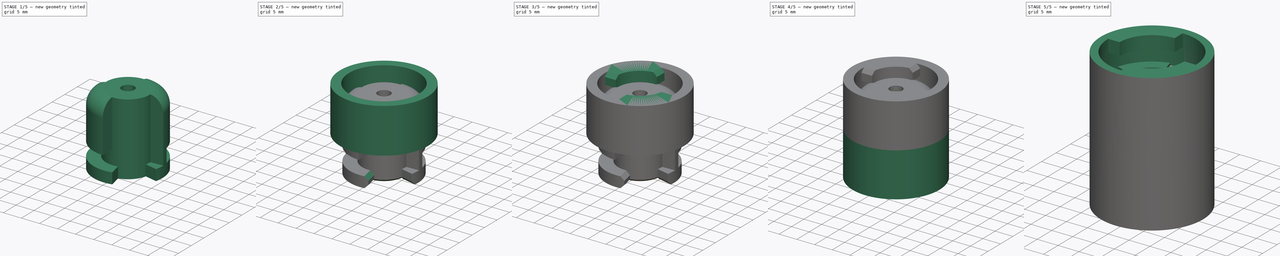
[diagram: build sequence overview — one tinted view per stage of 5, left to right]
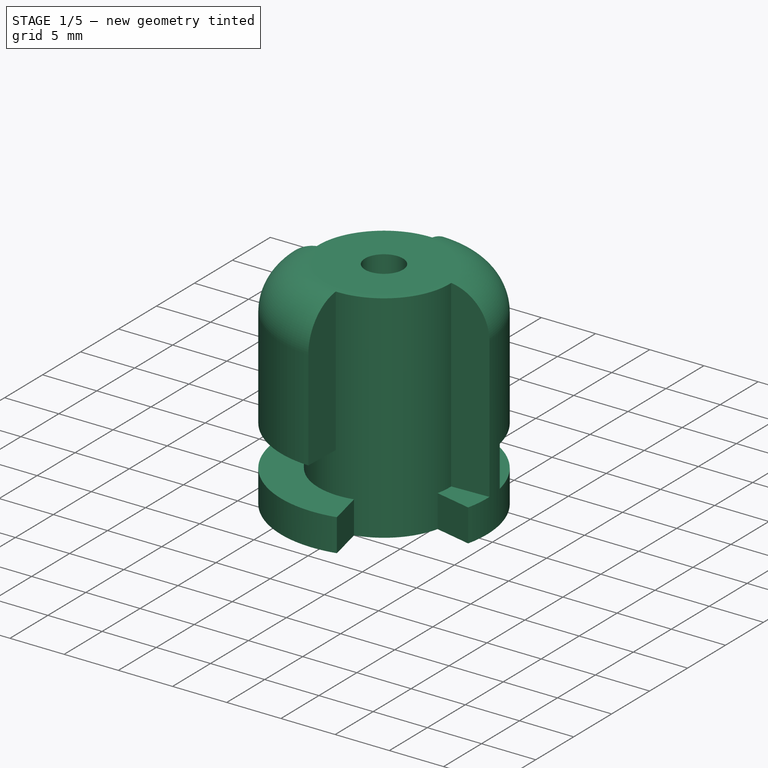
[diagram: stage 1 of 5 — iso view after this stage's code; geometry added in this stage tinted green]
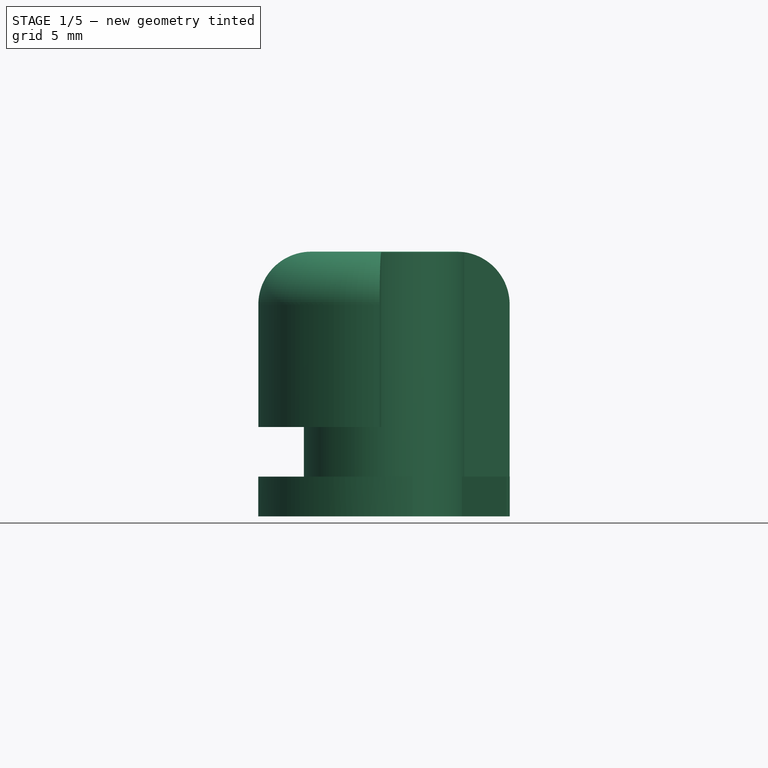
[diagram: stage 1 of 5 — front view after this stage's code; geometry added in this stage tinted green]
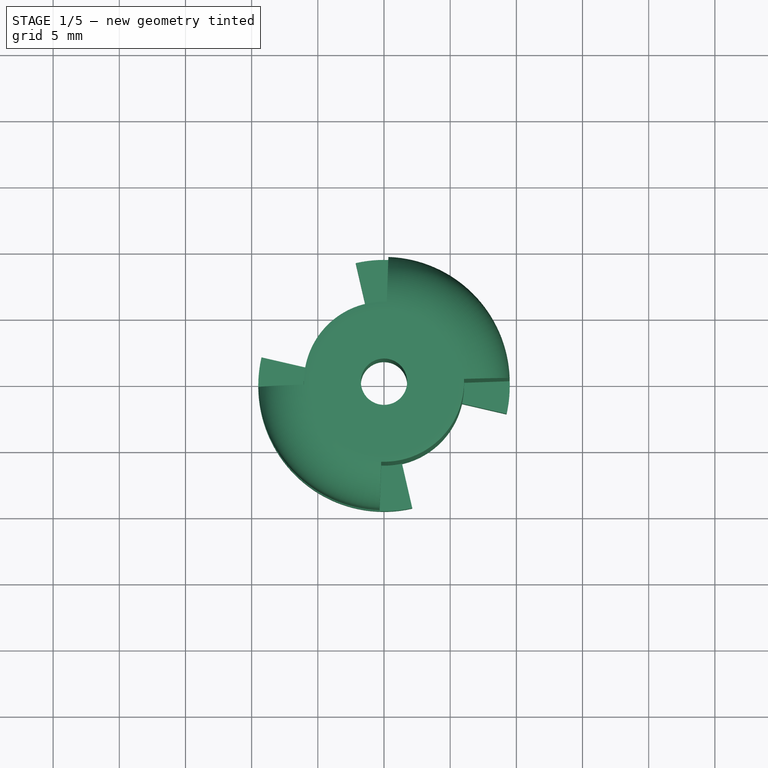
[diagram: stage 1 of 5 — top view after this stage's code; geometry added in this stage tinted green]
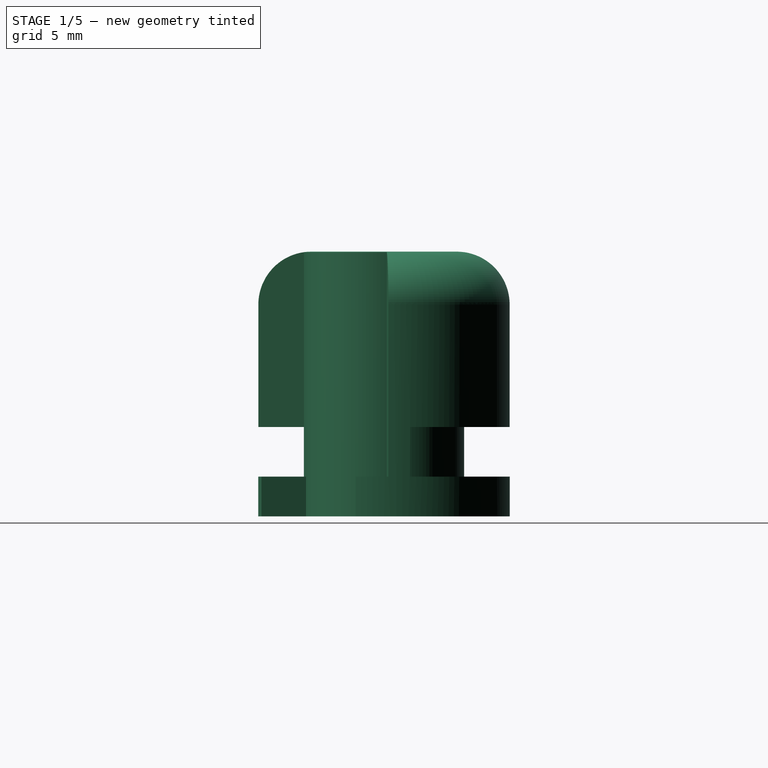
[diagram: stage 1 of 5 — right view after this stage's code; geometry added in this stage tinted green]
FCSTD DOCUMENT  (FreeCAD 0.20R)
Label: PushButtonFeet
License: All rights reserved
LicenseURL: http://en.wikipedia.org/wiki/All_rights_reserved
objects: Sketcher::SketchObject×19, PartDesign::Pad×10, PartDesign::PolarPattern×9, PartDesign::Chamfer×7, PartDesign::Plane×5, PartDesign::Pocket×5, PartDesign::Body×4, PartDesign::Revolution×3, Spreadsheet::Sheet×1
note: 87 computed .brp shape members not serialized (recipe doc carries the construction recipe); baked Part::Feature solids carry a one-line shape summary decoded from their .brp

FEATURE [Sketcher::SketchObject] Sketch013
  FullyConstrained = true
  MapMode = 5
  Placement = pos=(0,0,0) rot=(1,0,0;1.5708rad)
  Support = -> [XZ_Plane003]
  expr: Constraints[6] = <<Spreadsheet>>.Axlediameter / 2
  expr: Constraints[7] = <<Spreadsheet>>.Holediameter / 2 - <<Spreadsheet>>.Wallthickness - 0.25mm
  expr: Constraints[8] = <<Spreadsheet>>.Holedepth - 2 * <<Spreadsheet>>.Wallthickness
  expr: Constraints[22] = <<Spreadsheet>>.Groove
  expr: Constraints[23] = <<Spreadsheet>>.Groove + 0.75mm
  expr: Constraints[24] = <<Spreadsheet>>.Holediameter / 2 - <<Spreadsheet>>.Wallthickness - <<Spreadsheet>>.Blockerthickness - 0.7mm
  sketch-geometry (9):
    g0: LineSegment StartX=1.75 StartY=20 StartZ=0 EndX=5.5 EndY=20 EndZ=0
    g1: ArcOfCircle CenterX=5.5 CenterY=16 CenterZ=0 NormalX=0 NormalY=0 NormalZ=1 AngleXU=0 Radius=4 StartAngle=0 EndAngle=1.5708
    g2: LineSegment StartX=9.5 StartY=0 StartZ=0 EndX=1.75 EndY=0 EndZ=0
    g3: LineSegment StartX=1.75 StartY=0 StartZ=0 EndX=1.75 EndY=20 EndZ=0
    g4: LineSegment StartX=9.5 StartY=0 StartZ=0 EndX=9.5 EndY=3 EndZ=0
    g5: LineSegment StartX=9.5 StartY=3 StartZ=0 EndX=6.05 EndY=3 EndZ=0
    g6: LineSegment StartX=6.05 StartY=3 StartZ=0 EndX=6.05 EndY=6.75 EndZ=0
    g7: LineSegment StartX=6.05 StartY=6.75 StartZ=0 EndX=9.5 EndY=6.75 EndZ=0
    g8: LineSegment StartX=9.5 StartY=6.75 StartZ=0 EndX=9.5 EndY=16 EndZ=0
  constraints (27):
    c: Horizontal(g0)
    c: Tangent(g1,g0) = 1.5708
    c: Horizontal(g2)
    c: Vertical(g3)
    c: Coincident(g0,g3)
    c: Coincident(g2,g3)
    c: DistanceX(g-1,g0) = 1.75
    c: DistanceX(g-1,g2) = 9.5
    c: DistanceY(g3,g3) = 20
    c: DistanceY(g-1,g2) = 0
    c: Radius(g1) = 4
    c: Coincident(g2,g4)
    c: Vertical(g4)
    c: Coincident(g4,g5)
    c: Horizontal(g5)
    c: Coincident(g5,g6)
    c: Vertical(g6)
    c: Coincident(g6,g7)
    c: Horizontal(g7)
    c: Coincident(g7,g8)
    c: Coincident(g8,g1)
    c: Vertical(g8)
    c: DistanceY(g4,g4) = 3
    c: DistanceY(g6,g6) = 3.75
    c: DistanceX(g-1,g5) = 6.05
    c: Vertical(g7,g4)
    c: Horizontal(g1,g1)
FEATURE [PartDesign::Revolution] Revolution002
  Angle = 360
  Axis = (0,-2e-16,1)
  Base = (0,0,0)
  Placement = pos=(0,0,0) rot=(1,0,0;1.5708rad)
  Profile = -> Sketch013
  ReferenceAxis = -> Sketch013 [V_Axis]
  Refine = true
  Reversed = true
FEATURE [Sketcher::SketchObject] Sketch014
  FullyConstrained = true
  MapMode = 5
  Support = -> [XY_Plane003]
  expr: Constraints[16] = <<Spreadsheet>>.Holediameter
  expr: Constraints[17] = <<Spreadsheet>>.Holediameter - 2 * <<Spreadsheet>>.Wallthickness - 0.5mm
  expr: Constraints[28] = <<Spreadsheet>>.Guideangle + 4°
  expr: Constraints[35] = <<Spreadsheet>>.Holediameter / 2 - <<Spreadsheet>>.Wallthickness - <<Spreadsheet>>.Blockerthickness - 0.7mm
  sketch-geometry (13):
    g0: ArcOfCircle CenterX=0 CenterY=0 CenterZ=0 NormalX=0 NormalY=0 NormalZ=1 AngleXU=0 Radius=6.05 StartAngle=1.79769 EndAngle=2.9147
    g1: ArcOfCircle CenterX=0 CenterY=0 CenterZ=0 NormalX=0 NormalY=0 NormalZ=1 AngleXU=0 Radius=12.25 StartAngle=0.785398 EndAngle=3.92699
    g2: ArcOfCircle CenterX=0 CenterY=0 CenterZ=0 NormalX=0 NormalY=0 NormalZ=1 AngleXU=0 Radius=9.5 StartAngle=0.785398 EndAngle=1.79769
    g3: ArcOfCircle CenterX=0 CenterY=0 CenterZ=0 NormalX=0 NormalY=0 NormalZ=1 AngleXU=0 Radius=9.5 StartAngle=2.9147 EndAngle=3.92699
    g4: LineSegment StartX=-8.66206 StartY=-8.66206 StartZ=0 EndX=-6.71751 EndY=-6.71751 EndZ=0
    g5: LineSegment StartX=6.71751 StartY=6.71751 StartZ=0 EndX=8.66206 EndY=8.66206 EndZ=0
    g6: LineSegment StartX=-2.13704 StartY=9.25652 StartZ=0 EndX=-1.36095 EndY=5.89494 EndZ=0
    g7: LineSegment StartX=-9.25652 StartY=2.13704 StartZ=0 EndX=-5.89494 EndY=1.36095 EndZ=0
    g8: LineSegment StartX=-8.66206 StartY=-8.66206 StartZ=0 EndX=8.66206 EndY=8.66206 EndZ=0
    g9: LineSegment StartX=0 StartY=0 StartZ=0 EndX=-9.25652 EndY=2.13704 EndZ=0
    g10: LineSegment StartX=0 StartY=0 StartZ=0 EndX=-2.13704 EndY=9.25652 EndZ=0
    g11: LineSegment StartX=-1.36095 StartY=5.89494 StartZ=0 EndX=6.71751 EndY=6.71751 EndZ=0
    g12: LineSegment StartX=-5.89494 StartY=1.36095 StartZ=0 EndX=-6.71751 EndY=-6.71751 EndZ=0
  constraints (36):
    c: Coincident(g4,g1)
    c: Coincident(g4,g3)
    c: Coincident(g5,g2)
    c: Coincident(g5,g1)
    c: Coincident(g6,g2)
    c: Coincident(g6,g0)
    c: Coincident(g7,g3)
    c: Coincident(g7,g0)
    c: Coincident(g8,g1)
    c: Coincident(g8,g1)
    c: Parallel(g5,g8)
    c: Parallel(g4,g8)
    c: PointOnObject(g0,g8)
    c: Coincident(g0,g1)
    c: PointOnObject(g0,g-2)
    c: PointOnObject(g0,g-1)
    c: Diameter(g1) = 24.5
    c: Diameter(g2) = 19
    c: Equal(g3,g2)
    c: Coincident(g3,g2)
    c: PointOnObject(g2,g-2)
    c: PointOnObject(g2,g-1)
    c: Coincident(g9,g0)
    c: Coincident(g9,g3)
    c: Coincident(g10,g0)
    c: Coincident(g10,g2)
    c: Parallel(g6,g10)
    c: Parallel(g7,g9)
    c: Angle(g10,g9) = 1.11701
    c: Coincident(g11,g0)
    c: Coincident(g11,g2)
    c: Coincident(g12,g0)
    c: Coincident(g12,g3)
    c: Equal(g12,g11)
    c: Angle(g8,g-1) = 2.35619
    c: Radius(g0) = 6.05
FEATURE [PartDesign::Pocket] Pocket001
  BaseFeature = -> Revolution002
  Length = 5
  Length2 = 100
  Placement = pos=(0,0,0) rot=(1,0,0;1.5708rad)
  Profile = -> Sketch014
  Refine = true
  Reversed = true
  Type = 1
FEATURE [PartDesign::PolarPattern] PolarPattern006
  Angle = 360
  Axis = -> Sketch014 [N_Axis]
  BaseFeature = -> Pocket001
  Occurrences = 2
  Originals = -> [Pocket001]
  Overlap = 0
  Placement = pos=(0,0,0) rot=(1,0,0;1.5708rad)
  Refine = true
FEATURE [PartDesign::Plane] DatumPlane004
  Length = 60
  MapMode = 5
  Placement = pos=(0,-7e-16,3) rot=(0,0,1;3.14159rad)
  ResizeMode = 0
  Support = -> [PolarPattern006]
  Width = 60
FEATURE [Sketcher::SketchObject] Sketch015
  FullyConstrained = true
  MapMode = 5
  Placement = pos=(0,-7e-16,3) rot=(0,0,1;3.14159rad)
  Support = -> [DatumPlane004]
  expr: Constraints[16] = Sketch014.Constraints[16]
  expr: Constraints[17] = Sketch014.Constraints[17]
  expr: Constraints[28] = 94°
  expr: Constraints[34] = Sketch014.Constraints[34]
  expr: Constraints[35] = Sketch014.Constraints[35]
  sketch-geometry (13):
    g0: ArcOfCircle CenterX=0 CenterY=0 CenterZ=0 NormalX=0 NormalY=0 NormalZ=1 AngleXU=0 Radius=6.05 StartAngle=1.53589 EndAngle=3.1765
    g1: ArcOfCircle CenterX=0 CenterY=0 CenterZ=0 NormalX=0 NormalY=0 NormalZ=1 AngleXU=0 Radius=12.25 StartAngle=0.785398 EndAngle=3.92699
    g2: ArcOfCircle CenterX=0 CenterY=0 CenterZ=0 NormalX=0 NormalY=0 NormalZ=1 AngleXU=0 Radius=9.5 StartAngle=0.785398 EndAngle=1.53589
    g3: ArcOfCircle CenterX=0 CenterY=0 CenterZ=0 NormalX=0 NormalY=0 NormalZ=1 AngleXU=0 Radius=9.5 StartAngle=3.1765 EndAngle=3.92699
    g4: LineSegment StartX=-8.66206 StartY=-8.66206 StartZ=0 EndX=-6.71751 EndY=-6.71751 EndZ=0
    g5: LineSegment StartX=6.71751 StartY=6.71751 StartZ=0 EndX=8.66206 EndY=8.66206 EndZ=0
    g6: LineSegment StartX=0.331545 StartY=9.49421 StartZ=0 EndX=0.211142 EndY=6.04631 EndZ=0
    g7: LineSegment StartX=-9.49421 StartY=-0.331545 StartZ=0 EndX=-6.04631 EndY=-0.211142 EndZ=0
    g8: LineSegment StartX=-8.66206 StartY=-8.66206 StartZ=0 EndX=8.66206 EndY=8.66206 EndZ=0
    g9: LineSegment StartX=0 StartY=0 StartZ=0 EndX=-9.49421 EndY=-0.331545 EndZ=0
    g10: LineSegment StartX=0 StartY=0 StartZ=0 EndX=0.331545 EndY=9.49421 EndZ=0
    g11: LineSegment StartX=0.211142 StartY=6.04631 StartZ=0 EndX=6.71751 EndY=6.71751 EndZ=0
    g12: LineSegment StartX=-6.04631 StartY=-0.211142 StartZ=0 EndX=-6.71751 EndY=-6.71751 EndZ=0
  constraints (36):
    c: Coincident(g4,g1)
    c: Coincident(g4,g3)
    c: Coincident(g5,g2)
    c: Coincident(g5,g1)
    c: Coincident(g6,g2)
    c: Coincident(g6,g0)
    c: Coincident(g7,g3)
    c: Coincident(g7,g0)
    c: Coincident(g8,g1)
    c: Coincident(g8,g1)
    c: Parallel(g5,g8)
    c: Parallel(g4,g8)
    c: PointOnObject(g0,g8)
    c: Coincident(g0,g1)
    c: PointOnObject(g0,g-2)
    c: PointOnObject(g0,g-1)
    c: Diameter(g1) = 24.5
    c: Diameter(g2) = 19
    c: Equal(g3,g2)
    c: Coincident(g3,g2)
    c: PointOnObject(g2,g-2)
    c: PointOnObject(g2,g-1)
    c: Coincident(g9,g0)
    c: Coincident(g9,g3)
    c: Coincident(g10,g0)
    c: Coincident(g10,g2)
    c: Parallel(g6,g10)
    c: Parallel(g7,g9)
    c: Angle(g10,g9) = 1.64061
    c: Coincident(g11,g0)
    c: Coincident(g11,g2)
    c: Coincident(g12,g0)
    c: Coincident(g12,g3)
    c: Equal(g12,g11)
    c: Angle(g8,g-1) = 2.35619
    c: Radius(g0) = 6.05
FEATURE [PartDesign::Pocket] Pocket002
  BaseFeature = -> PolarPattern006
  Length = 5
  Length2 = 100
  Placement = pos=(0,0,0) rot=(1,0,0;1.5708rad)
  Profile = -> Sketch015
  Refine = true
  Reversed = true
  Type = 1
FEATURE [PartDesign::PolarPattern] PolarPattern007
  Angle = 360
  Axis = -> Sketch015 [N_Axis]
  BaseFeature = -> Pocket002
  Occurrences = 2
  Originals = -> [Pocket002]
  Overlap = 0
  Placement = pos=(0,0,0) rot=(1,0,0;1.5708rad)
  Refine = true
FEATURE [Sketcher::SketchObject] Sketch017
  FullyConstrained = true
  MapMode = 5
  Support = -> [XY_Plane003]
  sketch-geometry (1):
    g0: Circle CenterX=0 CenterY=0 CenterZ=0 NormalX=0 NormalY=0 NormalZ=1 AngleXU=0 Radius=4
  constraints (2):
    c: Coincident(g0,g-1)
    c: Diameter(g0) = 8
FEATURE [PartDesign::Pocket] Pocket003
  BaseFeature = -> PolarPattern007
  Length = 4
  Length2 = 100
  Placement = pos=(0,0,0) rot=(1,0,0;1.5708rad)
  Profile = -> Sketch017
  Refine = true
  Reversed = true
  Type = 0
FEATURE [Sketcher::SketchObject] Sketch018
  ExternalGeometry = -> [Pocket003]
  FullyConstrained = true
  MapMode = 5
  Placement = pos=(0,-1.5e-15,6.75) rot=(1,0,0;3.14159rad)
  Support = -> [Pocket003]
  sketch-geometry (5):
    g0: LineSegment StartX=9.2924 StartY=-1.97516 StartZ=0 EndX=0 EndY=0 EndZ=0
    g1: ArcOfCircle CenterX=0 CenterY=0 CenterZ=0 NormalX=0 NormalY=0 NormalZ=1 AngleXU=0 Radius=6.05 StartAngle=6.07375 EndAngle=6.24828
    g2: LineSegment StartX=6.04631 StartY=-0.211142 StartZ=0 EndX=9.49421 EndY=-0.331545 EndZ=0
    g3: LineSegment StartX=5.91779 StartY=-1.25787 StartZ=0 EndX=9.2924 EndY=-1.97516 EndZ=0
    g4: ArcOfCircle CenterX=0 CenterY=0 CenterZ=0 NormalX=0 NormalY=0 NormalZ=1 AngleXU=0 Radius=9.5 StartAngle=6.07375 EndAngle=6.24828
  constraints (12):
    c: Angle(g0,g-1) = 0.20944
    c: Coincident(g1,g-1)
    c: Coincident(g1,g-4)
    c: PointOnObject(g1,g0)
    c: Coincident(g2,g1)
    c: Coincident(g2,g-4)
    c: Coincident(g3,g1)
    c: Coincident(g3,g0)
    c: Coincident(g4,g1)
    c: Coincident(g4,g2)
    c: Coincident(g4,g3)
    c: Coincident(g0,g1)
FEATURE [PartDesign::Pad] Pad009
  BaseFeature = -> Pocket003
  Direction = (0,2e-16,-1)
  Length = 10
  Length2 = 100
  Placement = pos=(0,0,0) rot=(1,0,0;1.5708rad)
  Profile = -> Sketch018
  ReferenceAxis = -> Sketch018 [N_Axis]
  Refine = true
  Type = 2
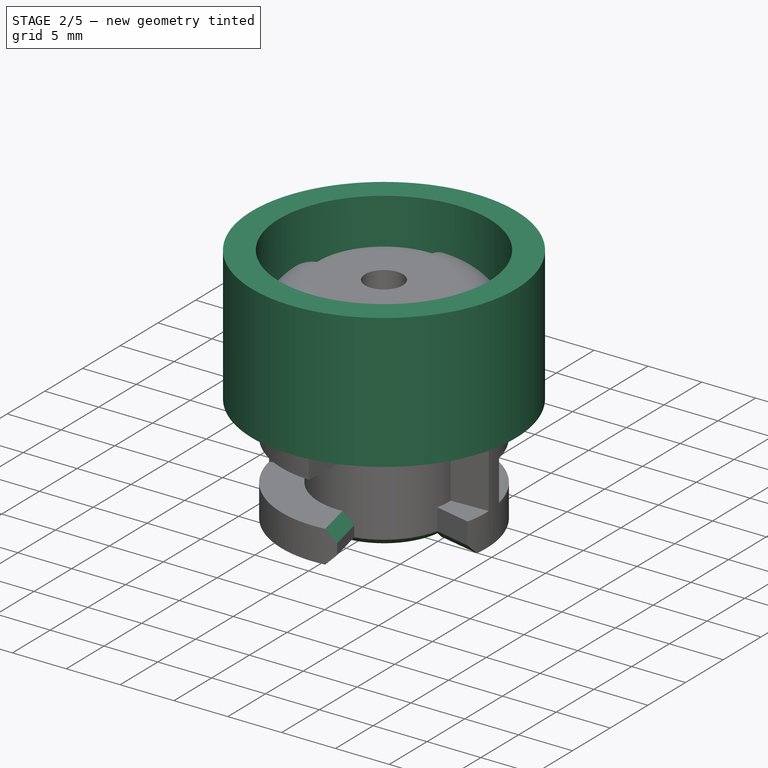
[diagram: stage 2 of 5 — iso view after this stage's code; geometry added in this stage tinted green]
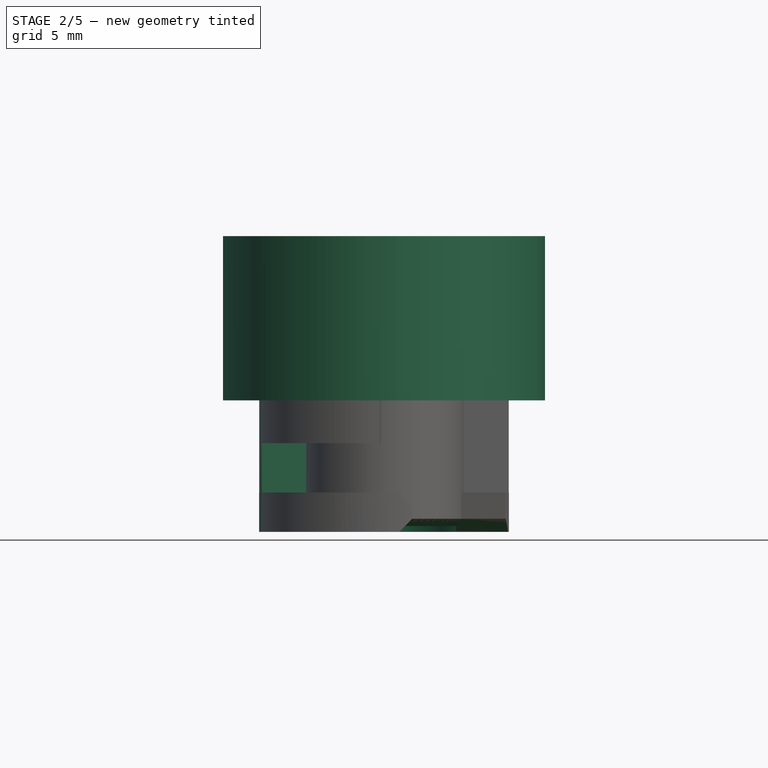
[diagram: stage 2 of 5 — front view after this stage's code; geometry added in this stage tinted green]
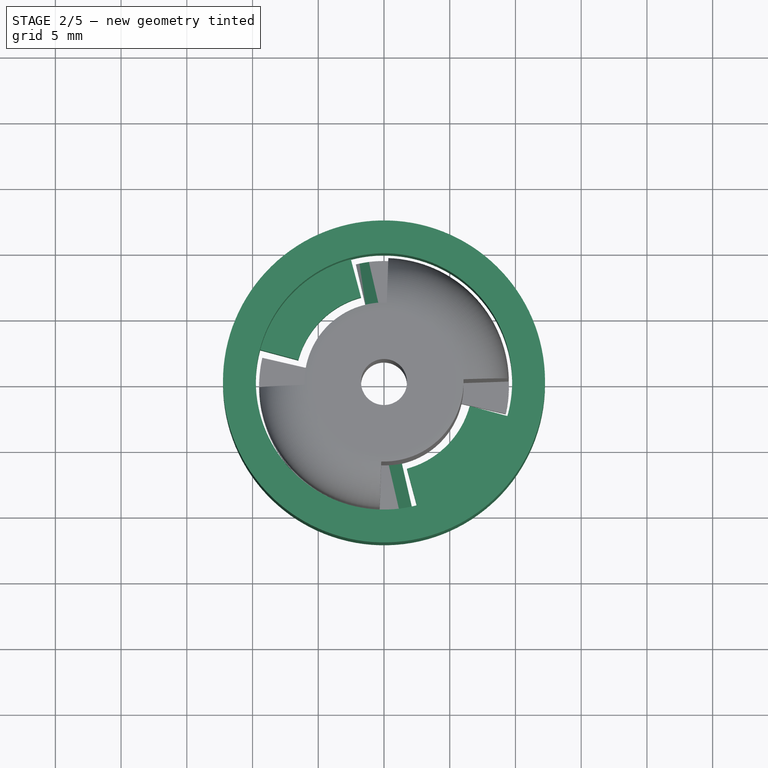
[diagram: stage 2 of 5 — top view after this stage's code; geometry added in this stage tinted green]
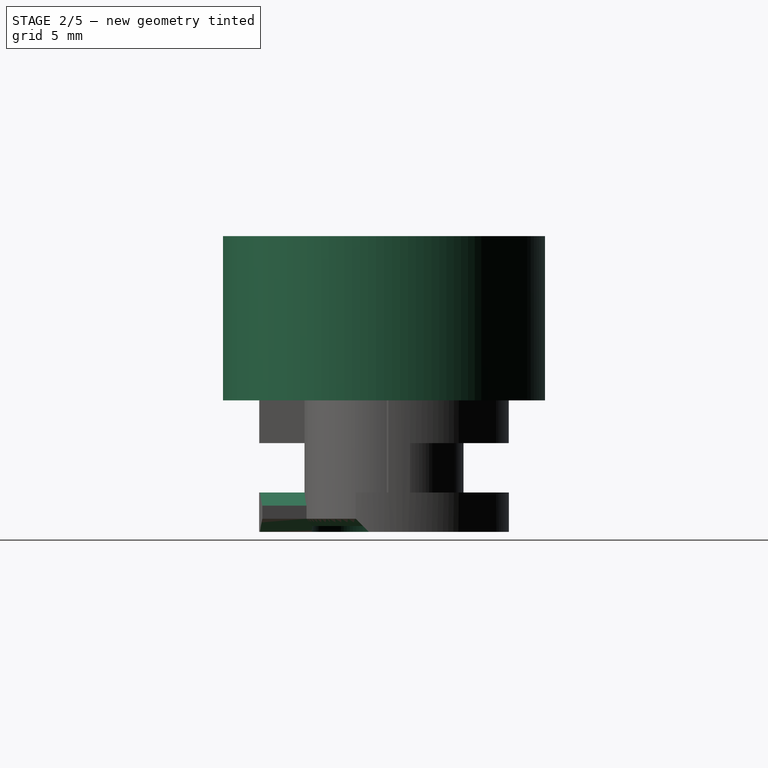
[diagram: stage 2 of 5 — right view after this stage's code; geometry added in this stage tinted green]
FEATURE [PartDesign::Body] Body001  label="LowerHalf"
  Group = -> [Sketch005,Pad004,Chamfer001,Sketch006,Revolution,Sketch007,Pad005,PolarPattern001,DatumPlane001,Sketch008,Pad006,PolarPattern002,Chamfer002]
  Origin = -> Origin001
  Tip = -> Chamfer002
FEATURE [Sketcher::SketchObject] Sketch009
  FullyConstrained = true
  MapMode = 5
  Placement = pos=(0,0,0) rot=(1,0,0;1.5708rad)
  Support = -> [XZ_Plane002]
  expr: Constraints[11] = <<Spreadsheet>>.Holediameter / 2
  expr: Constraints[12] = <<Spreadsheet>>.Wallthickness
  expr: Constraints[14] = <<Spreadsheet>>.Wallthickness / 2
  expr: Constraints[17] = <<Spreadsheet>>.Holedepth - <<Spreadsheet>>.Wallthickness
  expr: Constraints[15] = <<Spreadsheet>>.Holedepth / 2
  expr: Constraints[16] = <<Spreadsheet>>.Wallthickness
  sketch-geometry (6):
    g0: LineSegment StartX=12.25 StartY=10 StartZ=0 EndX=12.25 EndY=22.5 EndZ=0
    g1: LineSegment StartX=12.25 StartY=22.5 StartZ=0 EndX=9.75 EndY=22.5 EndZ=0
    g2: LineSegment StartX=9.75 StartY=22.5 StartZ=0 EndX=9.75 EndY=12.5 EndZ=0
    g3: LineSegment StartX=9.75 StartY=12.5 StartZ=0 EndX=11 EndY=12.5 EndZ=0
    g4: LineSegment StartX=11 StartY=12.5 StartZ=0 EndX=11 EndY=10 EndZ=0
    g5: LineSegment StartX=11 StartY=10 StartZ=0 EndX=12.25 EndY=10 EndZ=0
  constraints (18):
    c: Vertical(g0)
    c: Coincident(g0,g1)
    c: Coincident(g1,g2)
    c: Coincident(g2,g3)
    c: Horizontal(g3)
    c: Coincident(g3,g4)
    c: Coincident(g4,g5)
    c: Coincident(g5,g0)
    c: Vertical(g2)
    c: Vertical(g4)
    c: Horizontal(g5)
    c: DistanceX(g-1,g0) = 12.25
    c: DistanceX(g1,g1) = 2.5
    c: Horizontal(g1)
    c: DistanceX(g5,g5) = 1.25
    c: DistanceY(g-1,g2) = 12.5
    c: DistanceY(g4,g4) = 2.5
    c: DistanceY(g-1,g0) = 22.5
FEATURE [PartDesign::Revolution] Revolution001
  Angle = 360
  Axis = (0,-2e-16,1)
  Base = (0,0,0)
  Placement = pos=(0,0,0) rot=(1,0,0;1.5708rad)
  Profile = -> Sketch009
  ReferenceAxis = -> Sketch009 [V_Axis]
  Refine = true
  Reversed = true
FEATURE [PartDesign::Plane] DatumPlane002
  AttachmentOffset = pos=(0,0,-12.5) rot=(0,0,1;0rad)
  Length = 60
  MapMode = 3
  Placement = pos=(0,-2.8e-15,12.5) rot=(1,0,0;3.14159rad)
  ResizeMode = 0
  Support = -> [Revolution001]
  Width = 60
  expr: .AttachmentOffset.Base.z = -<<Spreadsheet>>.Holedepth / 2
FEATURE [Sketcher::SketchObject] Sketch010
  FullyConstrained = true
  MapMode = 5
  Placement = pos=(0,-2.8e-15,12.5) rot=(1,0,0;3.14159rad)
  Support = -> [DatumPlane002]
  expr: Constraints[12] = <<Spreadsheet>>.Holediameter - 2 * <<Spreadsheet>>.Wallthickness
  expr: Constraints[13] = <<Spreadsheet>>.Blockerthickness
  expr: Constraints[14] = (90° - <<Spreadsheet>>.Guideangle) / 2
  expr: Constraints[15] = <<Spreadsheet>>.Guideangle
  sketch-geometry (6):
    g0: ArcOfCircle CenterX=0 CenterY=0 CenterZ=0 NormalX=0 NormalY=0 NormalZ=1 AngleXU=0 Radius=6.75 StartAngle=0.261799 EndAngle=1.309
    g1: ArcOfCircle CenterX=0 CenterY=0 CenterZ=0 NormalX=0 NormalY=0 NormalZ=1 AngleXU=0 Radius=9.75 StartAngle=0.261799 EndAngle=1.309
    g2: LineSegment StartX=2.52349 StartY=9.41778 StartZ=0 EndX=1.74703 EndY=6.52 EndZ=0
    g3: LineSegment StartX=6.52 StartY=1.74703 StartZ=0 EndX=9.41778 EndY=2.52349 EndZ=0
    g4: LineSegment StartX=0 StartY=0 StartZ=0 EndX=9.41778 EndY=2.52349 EndZ=0
    g5: LineSegment StartX=0 StartY=0 StartZ=0 EndX=2.52349 EndY=9.41778 EndZ=0
  constraints (16):
    c: Coincident(g0,g-1)
    c: Coincident(g1,g0)
    c: Coincident(g2,g1)
    c: Coincident(g2,g0)
    c: Coincident(g3,g0)
    c: Coincident(g3,g1)
    c: Coincident(g4,g0)
    c: Coincident(g4,g1)
    c: Coincident(g5,g0)
    c: Coincident(g5,g1)
    c: Parallel(g2,g5)
    c: Parallel(g3,g4)
    c: Diameter(g1) = 19.5
    c: Distance(g2) = 3
    c: Angle(g5,g-2) = 0.261799
    c: Angle(g4,g5) = 1.0472
FEATURE [PartDesign::Pad] Pad007
  BaseFeature = -> Revolution001
  Direction = (0,2e-16,-1)
  Length = 3.25
  Length2 = 100
  Placement = pos=(0,0,0) rot=(1,0,0;1.5708rad)
  Profile = -> Sketch010
  Refine = true
  Reversed = true
  Type = 0
  expr: Length = <<Spreadsheet>>.Holedepth / 2 - <<Spreadsheet>>.Wallthickness - 2 * <<Spreadsheet>>.Groove - 0.75mm
FEATURE [PartDesign::PolarPattern] PolarPattern003
  Angle = 360
  Axis = -> Sketch010 [N_Axis]
  BaseFeature = -> Pad007
  Occurrences = 2
  Originals = -> [Pad007]
  Overlap = 0
  Placement = pos=(0,0,0) rot=(1,0,0;1.5708rad)
  Refine = true
FEATURE [PartDesign::PolarPattern] PolarPattern008
  Angle = 360
  Axis = -> Sketch018 [N_Axis]
  BaseFeature = -> Pad009
  Occurrences = 2
  Originals = -> [Pad009]
  Overlap = 0
  Placement = pos=(0,0,0) rot=(1,0,0;1.5708rad)
  Refine = true
FEATURE [PartDesign::Chamfer] Chamfer003
  Angle = 45
  Base = -> PolarPattern008 [Edge70,Edge35]
  BaseFeature = -> PolarPattern008
  ChamferType = 0
  FlipDirection = false
  Placement = pos=(0,0,0) rot=(1,0,0;1.5708rad)
  Refine = true
  Size = 1
  Size2 = 1
  SupportTransform = false
FEATURE [PartDesign::Body] Body002  label="UpperHalf"
  Group = -> [Sketch009,Revolution001,DatumPlane002,Sketch010,Pad007,PolarPattern003,Sketch011,Pocket,PolarPattern004,DatumPlane003,Sketch012,Pad008,PolarPattern005,Chamfer004,Chamfer006]
  Origin = -> Origin002
  Tip = -> Chamfer006
FEATURE [PartDesign::Chamfer] Chamfer007
  Angle = 45
  Base = -> Chamfer003 [Edge22,Edge6,Edge30,Edge29,Edge31,Edge33]
  BaseFeature = -> Chamfer003
  ChamferType = 0
  FlipDirection = false
  Placement = pos=(0,0,0) rot=(1,0,0;1.5708rad)
  Refine = true
  Size = 1
  Size2 = 1
  SupportTransform = false
FEATURE [Sketcher::SketchObject] Sketch019
  FullyConstrained = true
  MapMode = 5
  Support = -> [XY_Plane003]
  sketch-geometry (1):
    g0: Circle CenterX=0 CenterY=0 CenterZ=0 NormalX=0 NormalY=0 NormalZ=1 AngleXU=0 Radius=5.5
  constraints (2):
    c: Coincident(g0,g-1)
    c: Diameter(g0) = 11
FEATURE [PartDesign::Pocket] Pocket004
  BaseFeature = -> Chamfer007
  Length = 3
  Length2 = 100
  Placement = pos=(0,0,0) rot=(1,0,0;1.5708rad)
  Profile = -> Sketch019
  Refine = true
  Reversed = true
  Type = 0
FEATURE [PartDesign::Body] Body003  label="Foot"
  Group = -> [Sketch013,Revolution002,Sketch014,Pocket001,PolarPattern006,Sketch015,DatumPlane004,Pocket002,PolarPattern007,Sketch017,Pocket003,Sketch018,Pad009,PolarPattern008,Chamfer003,Chamfer007,Sketch019,Pocket004]
  Origin = -> Origin003
  Tip = -> Pocket004
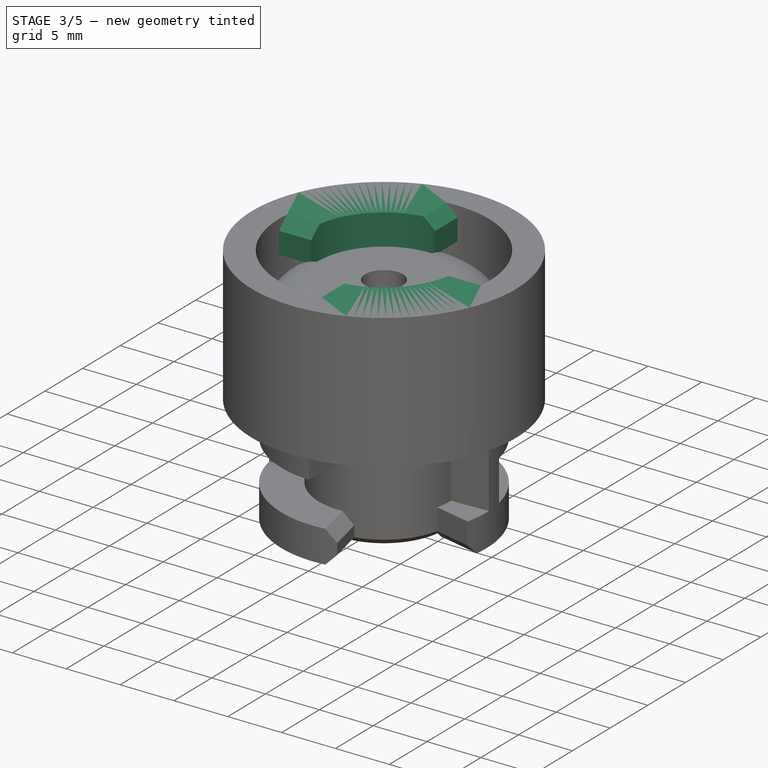
[diagram: stage 3 of 5 — iso view after this stage's code; geometry added in this stage tinted green]
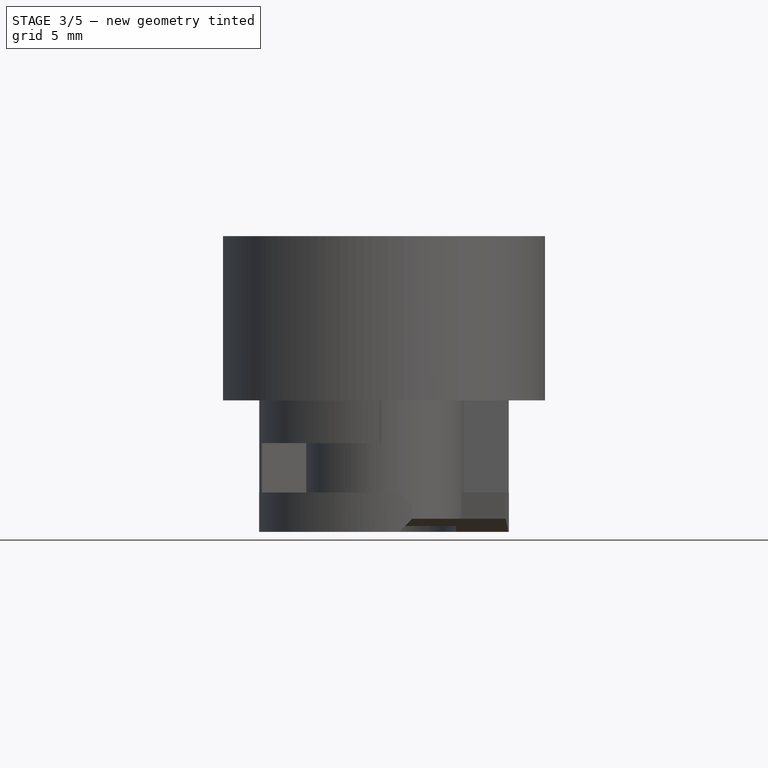
[diagram: stage 3 of 5 — front view after this stage's code; geometry added in this stage tinted green]
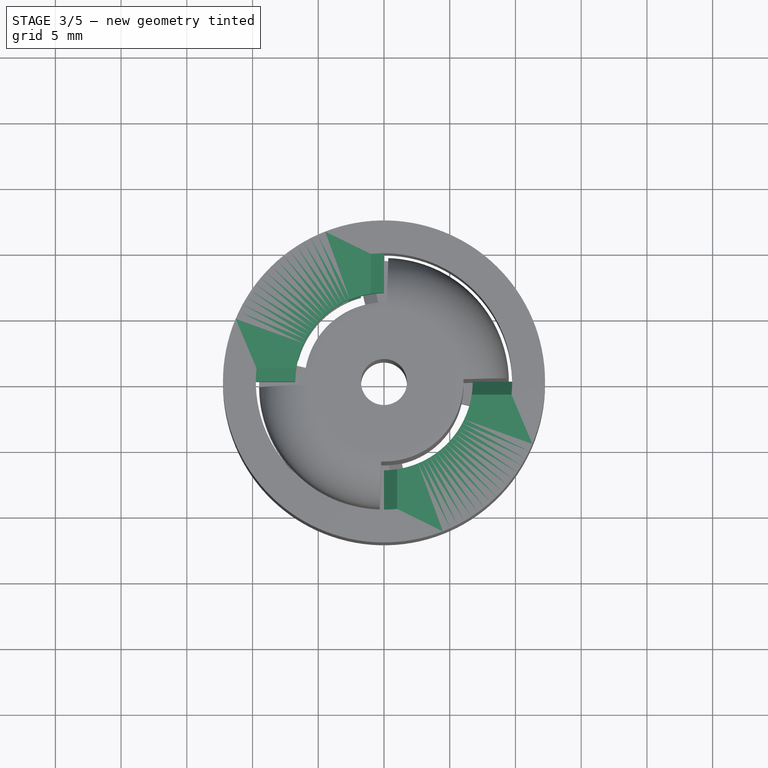
[diagram: stage 3 of 5 — top view after this stage's code; geometry added in this stage tinted green]
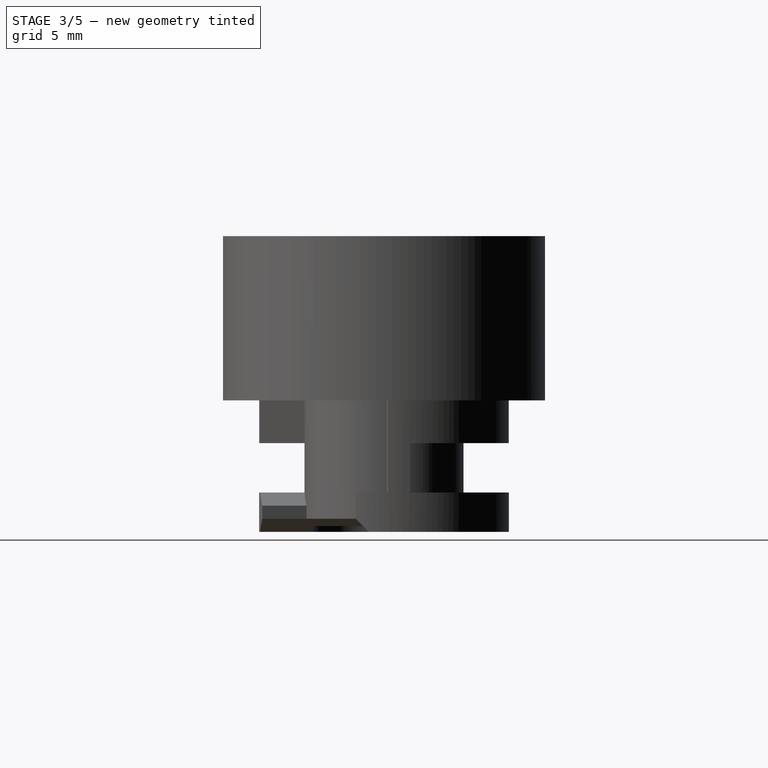
[diagram: stage 3 of 5 — right view after this stage's code; geometry added in this stage tinted green]
FEATURE [Sketcher::SketchObject] Sketch011
  FullyConstrained = true
  MapMode = 5
  Placement = pos=(0,-2.8e-15,12.5) rot=(1,0,0;3.14159rad)
  Support = -> [DatumPlane002]
  expr: Constraints[2] = <<Spreadsheet>>.Blockerthickness / 2 + 1mm
  expr: Constraints[4] = <<Spreadsheet>>.Holediameter / 2 - <<Spreadsheet>>.Wallthickness - <<Spreadsheet>>.Blockerthickness / 2
  sketch-geometry (2):
    g0: LineSegment StartX=0 StartY=0 StartZ=0 EndX=5.83363 EndY=5.83363 EndZ=0
    g1: Circle CenterX=5.83363 CenterY=5.83363 CenterZ=0 NormalX=0 NormalY=0 NormalZ=1 AngleXU=0 Radius=1.25
  constraints (5):
    c: Coincident(g0,g-1)
    c: Coincident(g1,g0)
    c: Diameter(g1) = 2.5
    c: Angle(g-1,g0) = 0.785398
    c: Distance(g0) = 8.25
FEATURE [PartDesign::Pocket] Pocket
  BaseFeature = -> PolarPattern003
  Length = 2
  Length2 = 100
  Placement = pos=(0,0,0) rot=(1,0,0;1.5708rad)
  Profile = -> Sketch011
  Refine = true
  Type = 0
FEATURE [PartDesign::PolarPattern] PolarPattern004
  Angle = 360
  Axis = -> Sketch011 [N_Axis]
  BaseFeature = -> Pocket
  Occurrences = 2
  Originals = -> [Pocket]
  Overlap = 0
  Placement = pos=(0,0,0) rot=(1,0,0;1.5708rad)
  Refine = true
FEATURE [PartDesign::Plane] DatumPlane003
  AttachmentOffset = pos=(0,0,-22.5) rot=(0,0,1;0rad)
  Length = 60
  MapMode = 3
  Placement = pos=(0,-5e-15,22.5) rot=(1,0,0;3.14159rad)
  ResizeMode = 0
  Support = -> [PolarPattern004]
  Width = 60
  expr: .AttachmentOffset.Base.z = -<<Spreadsheet>>.Holedepth + <<Spreadsheet>>.Wallthickness
FEATURE [Sketcher::SketchObject] Sketch012
  FullyConstrained = true
  MapMode = 5
  Placement = pos=(0,-5e-15,22.5) rot=(1,0,0;3.14159rad)
  Support = -> [DatumPlane003]
  expr: Constraints[10] = <<Spreadsheet>>.Blockerthickness
  expr: Constraints[11] = <<Spreadsheet>>.Holediameter - 2 * <<Spreadsheet>>.Wallthickness
  sketch-geometry (4):
    g0: ArcOfCircle CenterX=0 CenterY=0 CenterZ=0 NormalX=0 NormalY=0 NormalZ=1 AngleXU=0 Radius=9.75 StartAngle=0 EndAngle=1.5708
    g1: ArcOfCircle CenterX=0 CenterY=0 CenterZ=0 NormalX=0 NormalY=0 NormalZ=1 AngleXU=0 Radius=6.75 StartAngle=1e-16 EndAngle=1.5708
    g2: LineSegment StartX=6e-16 StartY=9.75 StartZ=0 EndX=4e-16 EndY=6.75 EndZ=0
    g3: LineSegment StartX=6.75 StartY=7e-16 StartZ=0 EndX=9.75 EndY=0 EndZ=0
  constraints (12):
    c: Coincident(g0,g-1)
    c: PointOnObject(g0,g-2)
    c: PointOnObject(g0,g-1)
    c: Coincident(g1,g0)
    c: PointOnObject(g1,g-2)
    c: PointOnObject(g1,g-1)
    c: Coincident(g2,g0)
    c: Coincident(g2,g1)
    c: Coincident(g3,g1)
    c: Coincident(g3,g0)
    c: Distance(g3) = 3
    c: Diameter(g0) = 19.5
FEATURE [PartDesign::Pad] Pad008
  BaseFeature = -> PolarPattern004
  Direction = (0,2e-16,-1)
  Length = 3
  Length2 = 100
  Placement = pos=(0,0,0) rot=(1,0,0;1.5708rad)
  Profile = -> Sketch012
  Refine = true
  Type = 0
  expr: Length = <<Spreadsheet>>.Groove
FEATURE [PartDesign::PolarPattern] PolarPattern005
  Angle = 360
  Axis = -> Sketch012 [N_Axis]
  BaseFeature = -> Pad008
  Occurrences = 2
  Originals = -> [Pad008]
  Overlap = 0
  Placement = pos=(0,0,0) rot=(1,0,0;1.5708rad)
  Refine = true
FEATURE [PartDesign::Chamfer] Chamfer004
  Angle = 45
  Base = -> PolarPattern005 [Edge49,Edge34,Edge56,Edge51]
  BaseFeature = -> PolarPattern005
  ChamferType = 0
  FlipDirection = false
  Placement = pos=(0,0,0) rot=(1,0,0;1.5708rad)
  Refine = true
  Size = 1
  Size2 = 1
  SupportTransform = false
FEATURE [PartDesign::Chamfer] Chamfer006
  Angle = 45
  Base = -> Chamfer004 [Edge66,Edge63,Edge50,Edge54]
  BaseFeature = -> Chamfer004
  ChamferType = 0
  FlipDirection = false
  Placement = pos=(0,0,0) rot=(1,0,0;1.5708rad)
  Refine = true
  Size = 1
  Size2 = 1
  SupportTransform = false
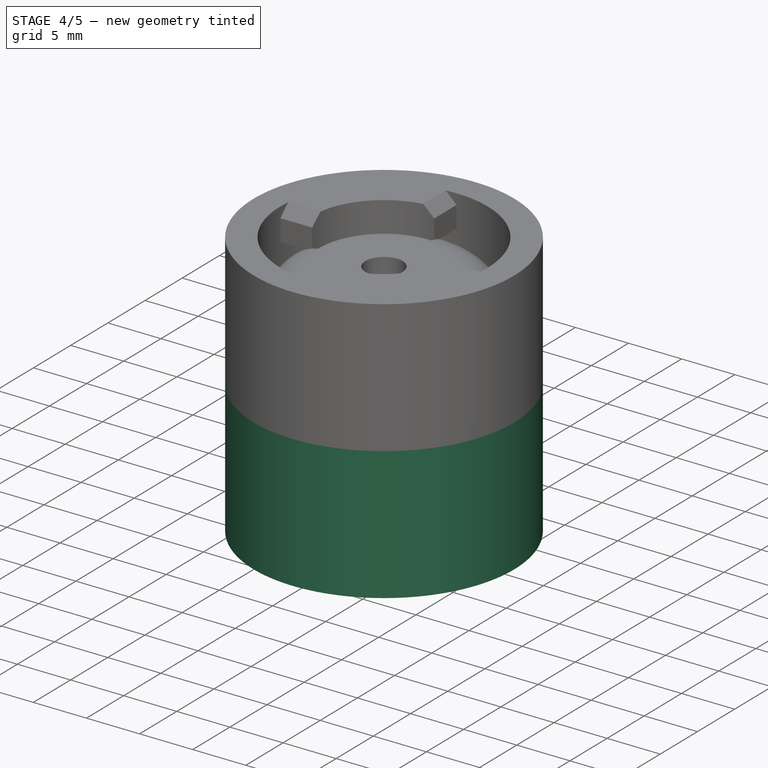
[diagram: stage 4 of 5 — iso view after this stage's code; geometry added in this stage tinted green]
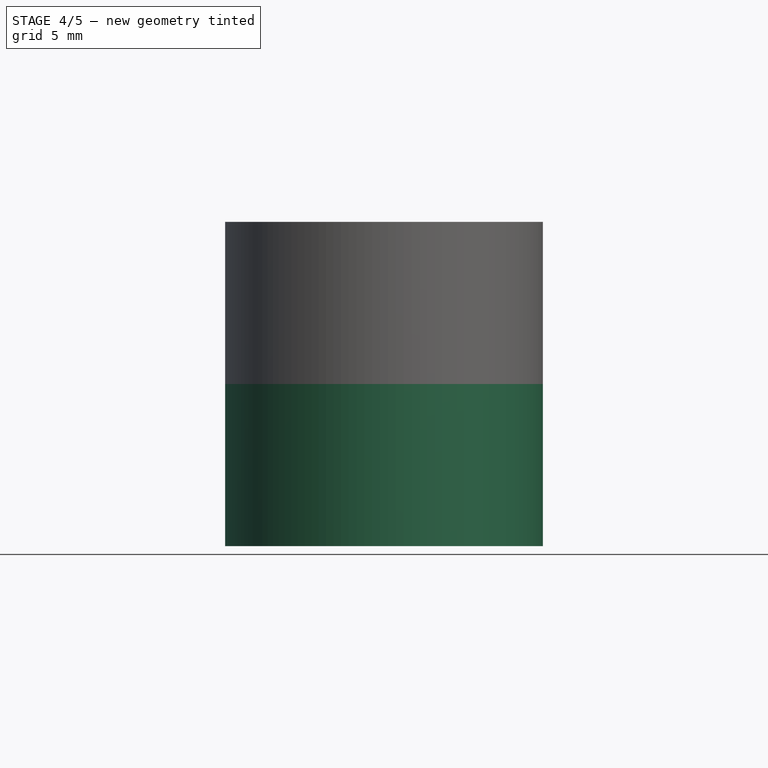
[diagram: stage 4 of 5 — front view after this stage's code; geometry added in this stage tinted green]
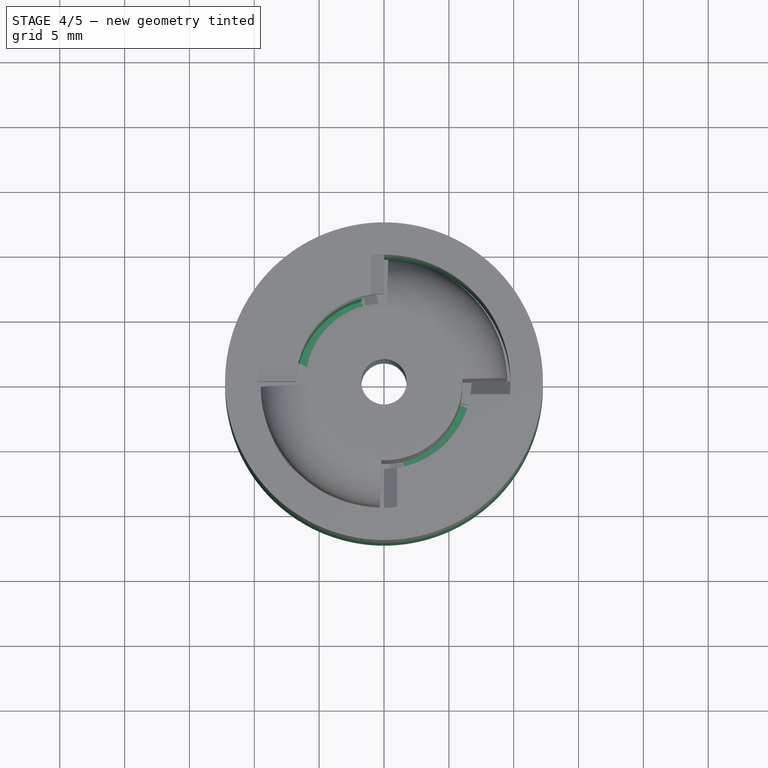
[diagram: stage 4 of 5 — top view after this stage's code; geometry added in this stage tinted green]
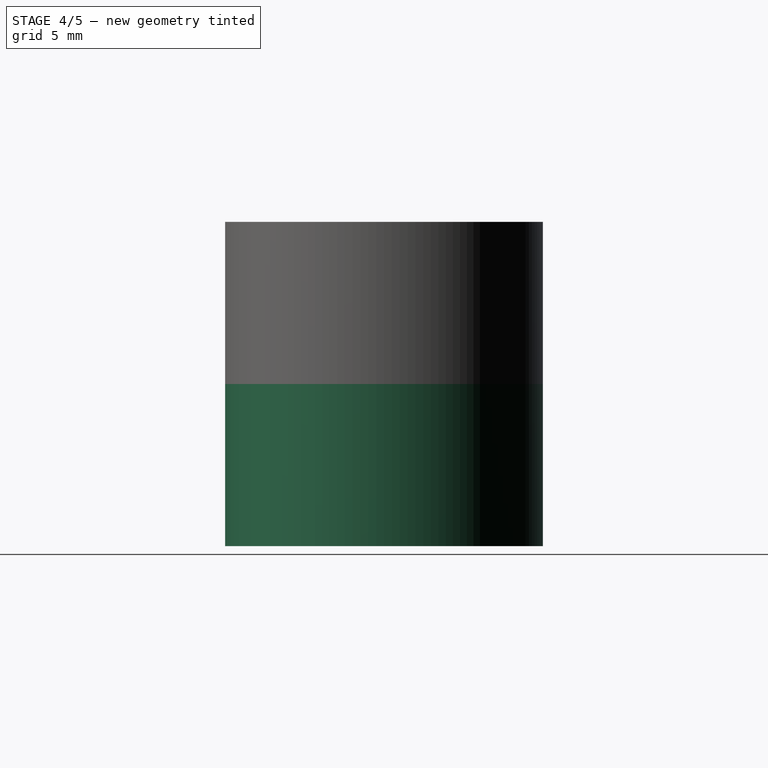
[diagram: stage 4 of 5 — right view after this stage's code; geometry added in this stage tinted green]
FEATURE [Sketcher::SketchObject] Sketch004
  ExternalGeometry = -> [Chamfer]
  FullyConstrained = true
  MapMode = 5
  Placement = pos=(0,0,30) rot=(0,0,1;0rad)
  Support = -> [Chamfer]
  sketch-geometry (5):
    g0: ArcOfCircle CenterX=0 CenterY=0 CenterZ=0 NormalX=0 NormalY=0 NormalZ=1 AngleXU=0 Radius=7.75 StartAngle=2.96706 EndAngle=3.14159
    g1: ArcOfCircle CenterX=0 CenterY=0 CenterZ=0 NormalX=0 NormalY=0 NormalZ=1 AngleXU=0 Radius=12.25 StartAngle=2.96706 EndAngle=7.85398
    g2: LineSegment StartX=-8.33e-14 StartY=12.25 StartZ=0 EndX=-7.75 EndY=-1.1831e-12 EndZ=0
    g3: LineSegment StartX=-12.0639 StartY=2.12719 StartZ=0 EndX=-7.63226 EndY=1.34577 EndZ=0
    g4: LineSegment StartX=0 StartY=0 StartZ=0 EndX=-12.0639 EndY=2.12719 EndZ=0
  constraints (12):
    c: Coincident(g0,g-1)
    c: Coincident(g0,g-3)
    c: Coincident(g1,g0)
    c: Coincident(g1,g-4)
    c: Coincident(g2,g1)
    c: Coincident(g2,g0)
    c: Coincident(g3,g1)
    c: Coincident(g3,g0)
    c: Coincident(g4,g0)
    c: Coincident(g4,g1)
    c: Parallel(g3,g4)
    c: Angle(g-1,g4) = 2.96706
FEATURE [PartDesign::Body] Body  label="Tube"
  Group = -> [Sketch,Pad,Sketch001,Pad001,Sketch002,Pad002,PolarPattern,DatumPlane,Sketch003,Pad003,Chamfer,Sketch004]
  Origin = -> Origin
  Tip = -> Chamfer
FEATURE [Spreadsheet::Sheet] Spreadsheet
  cells = A1=Holediameter; B1(Holediameter)==24.5mm; A2=Wallthickness; B2(Wallthickness)==2.5mm; A3=Guideangle; B3(Guideangle)==60°; A4=Axlediameter; B4(Axlediameter)==3.5mm; A5=Holedepth; B5(Holedepth)==25mm; A6=Blockerthickness; B6(Blockerthickness)==3mm; A7=Groove; B7(Groove)==3mm
FEATURE [Sketcher::SketchObject] Sketch005
  FullyConstrained = true
  MapMode = 5
  Support = -> [XY_Plane001]
  expr: Constraints[2] = <<Spreadsheet>>.Holediameter
  expr: Constraints[3] = <<Spreadsheet>>.Axlediameter
  sketch-geometry (2):
    g0: Circle CenterX=0 CenterY=0 CenterZ=0 NormalX=0 NormalY=0 NormalZ=1 AngleXU=0 Radius=12.25
    g1: Circle CenterX=0 CenterY=0 CenterZ=0 NormalX=0 NormalY=0 NormalZ=1 AngleXU=0 Radius=1.75
  constraints (4):
    c: Coincident(g0,g-1)
    c: Coincident(g1,g0)
    c: Diameter(g0) = 24.5
    c: Diameter(g1) = 3.5
FEATURE [PartDesign::Pad] Pad004
  Direction = (0,0,1)
  Length = 2.5
  Length2 = 100
  Profile = -> Sketch005
  Refine = true
  Reversed = true
  Type = 0
  expr: Length = <<Spreadsheet>>.Wallthickness
FEATURE [PartDesign::Chamfer] Chamfer001
  Angle = 45
  Base = -> Pad004 [Edge6]
  BaseFeature = -> Pad004
  ChamferType = 0
  FlipDirection = false
  Refine = true
  Size = 2
  Size2 = 1
  SupportTransform = false
  expr: Size = <<Spreadsheet>>.Wallthickness - 0.5mm
FEATURE [Sketcher::SketchObject] Sketch006
  FullyConstrained = true
  MapMode = 5
  Placement = pos=(0,0,0) rot=(1,0,0;1.5708rad)
  Support = -> [XZ_Plane001]
  expr: Constraints[11] = <<Spreadsheet>>.Holediameter / 2
  expr: Constraints[12] = <<Spreadsheet>>.Wallthickness
  expr: Constraints[13] = Spreadsheet.Holedepth / 2 - <<Spreadsheet>>.Wallthickness
  expr: Constraints[15] = <<Spreadsheet>>.Wallthickness
  expr: Constraints[17] = <<Spreadsheet>>.Wallthickness / 2 + 0.5mm
  sketch-geometry (6):
    g0: LineSegment StartX=12.25 StartY=0 StartZ=0 EndX=12.25 EndY=10 EndZ=0
    g1: LineSegment StartX=12.25 StartY=10 StartZ=0 EndX=10.5 EndY=10 EndZ=0
    g2: LineSegment StartX=10.5 StartY=10 StartZ=0 EndX=10.5 EndY=12.5 EndZ=0
    g3: LineSegment StartX=10.5 StartY=12.5 StartZ=0 EndX=9.75 EndY=12.5 EndZ=0
    g4: LineSegment StartX=9.75 StartY=12.5 StartZ=0 EndX=9.75 EndY=0 EndZ=0
    g5: LineSegment StartX=9.75 StartY=0 StartZ=0 EndX=12.25 EndY=0 EndZ=0
  constraints (18):
    c: PointOnObject(g0,g-1)
    c: Vertical(g0)
    c: Coincident(g0,g1)
    c: Coincident(g1,g2)
    c: Vertical(g2)
    c: Coincident(g2,g3)
    c: Coincident(g3,g4)
    c: Vertical(g4)
    c: Coincident(g4,g5)
    c: Coincident(g5,g0)
    c: Horizontal(g5)
    c: DistanceX(g-1,g0) = 12.25
    c: DistanceX(g5,g5) = 2.5
    c: DistanceY(g0,g0) = 10
    c: Horizontal(g1)
    c: DistanceY(g2,g2) = 2.5
    c: Horizontal(g3)
    c: DistanceX(g1,g1) = 1.75
FEATURE [PartDesign::Revolution] Revolution
  Angle = 360
  Axis = (0,-2e-16,1)
  Base = (0,0,0)
  BaseFeature = -> Chamfer001
  Profile = -> Sketch006
  ReferenceAxis = -> Sketch006 [V_Axis]
  Refine = true
  Reversed = true
FEATURE [Sketcher::SketchObject] Sketch007
  FullyConstrained = true
  MapMode = 5
  Support = -> [XY_Plane001]
  expr: Constraints[12] = <<Spreadsheet>>.Holediameter - 2 * <<Spreadsheet>>.Wallthickness
  expr: Constraints[13] = <<Spreadsheet>>.Blockerthickness
  expr: Constraints[14] = <<Spreadsheet>>.Guideangle
  expr: Constraints[15] = (90° - <<Spreadsheet>>.Guideangle) / 2
  sketch-geometry (6):
    g0: ArcOfCircle CenterX=0 CenterY=0 CenterZ=0 NormalX=0 NormalY=0 NormalZ=1 AngleXU=0 Radius=9.75 StartAngle=1.8326 EndAngle=2.87979
    g1: ArcOfCircle CenterX=0 CenterY=0 CenterZ=0 NormalX=0 NormalY=0 NormalZ=1 AngleXU=0 Radius=6.75 StartAngle=1.8326 EndAngle=2.87979
    g2: LineSegment StartX=-2.52349 StartY=9.41778 StartZ=0 EndX=-1.74703 EndY=6.52 EndZ=0
    g3: LineSegment StartX=-6.52 StartY=1.74703 StartZ=0 EndX=-9.41778 EndY=2.52349 EndZ=0
    g4: LineSegment StartX=0 StartY=0 StartZ=0 EndX=-2.52349 EndY=9.41778 EndZ=0
    g5: LineSegment StartX=0 StartY=0 StartZ=0 EndX=-9.41778 EndY=2.52349 EndZ=0
  constraints (16):
    c: Coincident(g0,g-1)
    c: Coincident(g1,g0)
    c: Coincident(g2,g0)
    c: Coincident(g2,g1)
    c: Coincident(g3,g1)
    c: Coincident(g3,g0)
    c: Coincident(g4,g0)
    c: Coincident(g4,g0)
    c: Coincident(g5,g0)
    c: Coincident(g5,g0)
    c: Parallel(g3,g5)
    c: Parallel(g4,g2)
    c: Diameter(g0) = 19.5
    c: Distance(g2) = 3
    c: Angle(g4,g5) = 1.0472
    c: Angle(g-2,g4) = 0.261799
FEATURE [PartDesign::Pad] Pad005
  BaseFeature = -> Revolution
  Direction = (0,0,1)
  Length = 12.5
  Length2 = 100
  Profile = -> Sketch007
  Refine = true
  Type = 0
  expr: Length = <<Spreadsheet>>.Holedepth / 2
FEATURE [PartDesign::PolarPattern] PolarPattern001
  Angle = 360
  Axis = -> Sketch007 [N_Axis]
  BaseFeature = -> Pad005
  Occurrences = 2
  Originals = -> [Pad005]
  Overlap = 0
  Refine = true
FEATURE [PartDesign::Plane] DatumPlane001
  AttachmentOffset = pos=(0,0,12.5) rot=(0,0,1;0rad)
  Length = 60
  MapMode = 2
  Placement = pos=(0,0,12.5) rot=(0,0,1;0rad)
  ResizeMode = 0
  Support = -> [PolarPattern001]
  Width = 60
  expr: .AttachmentOffset.Base.z = <<Spreadsheet>>.Holedepth / 2
FEATURE [Sketcher::SketchObject] Sketch008
  FullyConstrained = true
  MapMode = 5
  Placement = pos=(0,0,12.5) rot=(0,0,1;0rad)
  Support = -> [DatumPlane001]
  expr: Constraints[0] = <<Spreadsheet>>.Blockerthickness / 2
  expr: Constraints[4] = <<Spreadsheet>>.Holediameter / 2 - <<Spreadsheet>>.Wallthickness - 0.5 * <<Spreadsheet>>.Blockerthickness
  sketch-geometry (2):
    g0: Circle CenterX=-5.83363 CenterY=5.83363 CenterZ=0 NormalX=0 NormalY=0 NormalZ=1 AngleXU=0 Radius=0.75
    g1: LineSegment StartX=-5.83363 StartY=5.83363 StartZ=0 EndX=0 EndY=0 EndZ=0
  constraints (5):
    c: Diameter(g0) = 1.5
    c: Coincident(g1,g0)
    c: Coincident(g1,g-1)
    c: Angle(g-1,g1) = 2.35619
    c: Distance(g1) = 8.25
FEATURE [PartDesign::Pad] Pad006
  BaseFeature = -> PolarPattern001
  Direction = (0,0,1)
  Length = 1
  Length2 = 100
  Profile = -> Sketch008
  Refine = true
  Type = 0
FEATURE [PartDesign::PolarPattern] PolarPattern002
  Angle = 360
  Axis = -> Sketch008 [N_Axis]
  BaseFeature = -> Pad006
  Occurrences = 2
  Originals = -> [Pad006]
  Overlap = 0
  Refine = true
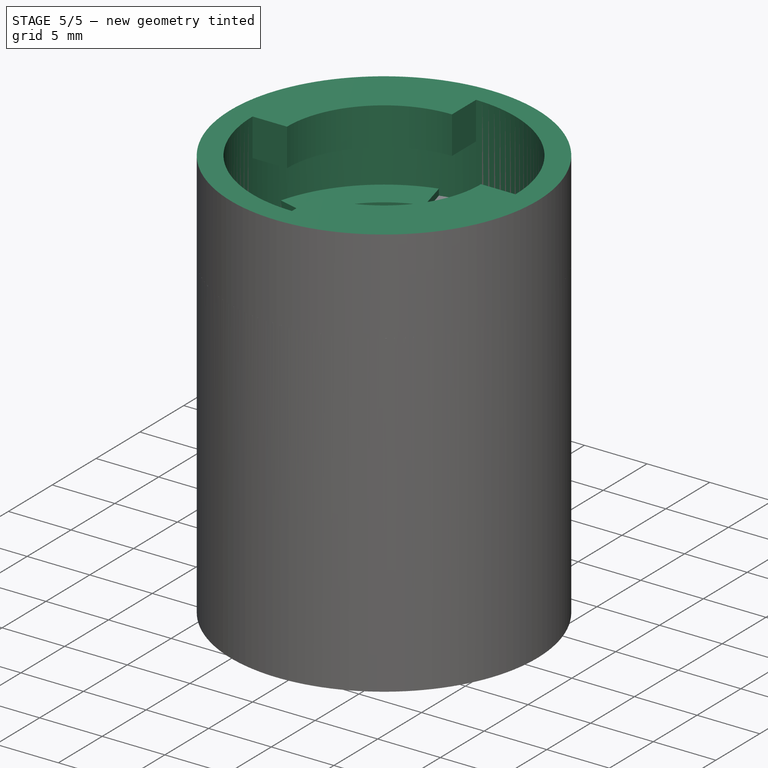
[diagram: stage 5 of 5 — iso view after this stage's code; geometry added in this stage tinted green]
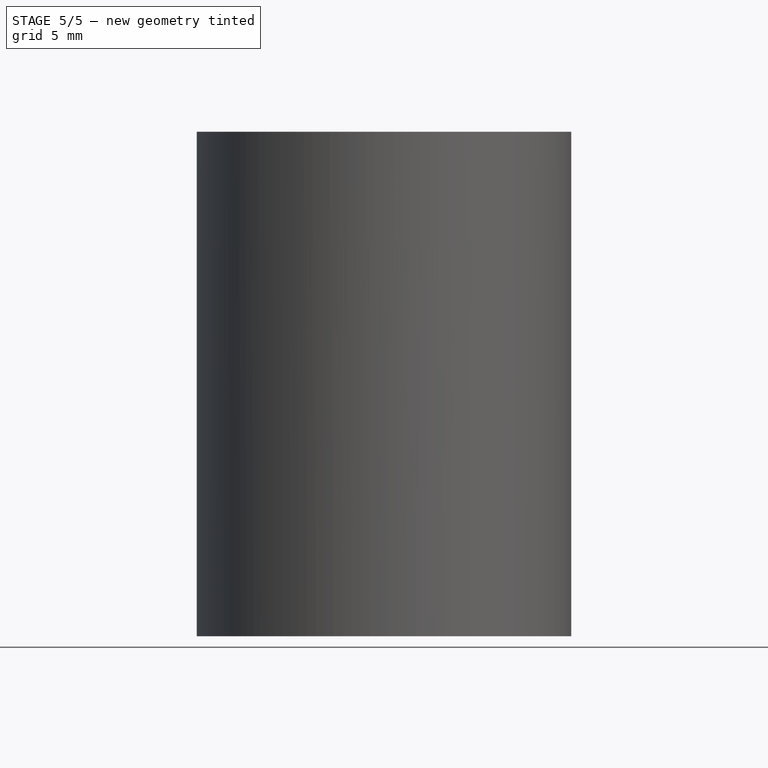
[diagram: stage 5 of 5 — front view after this stage's code; geometry added in this stage tinted green]
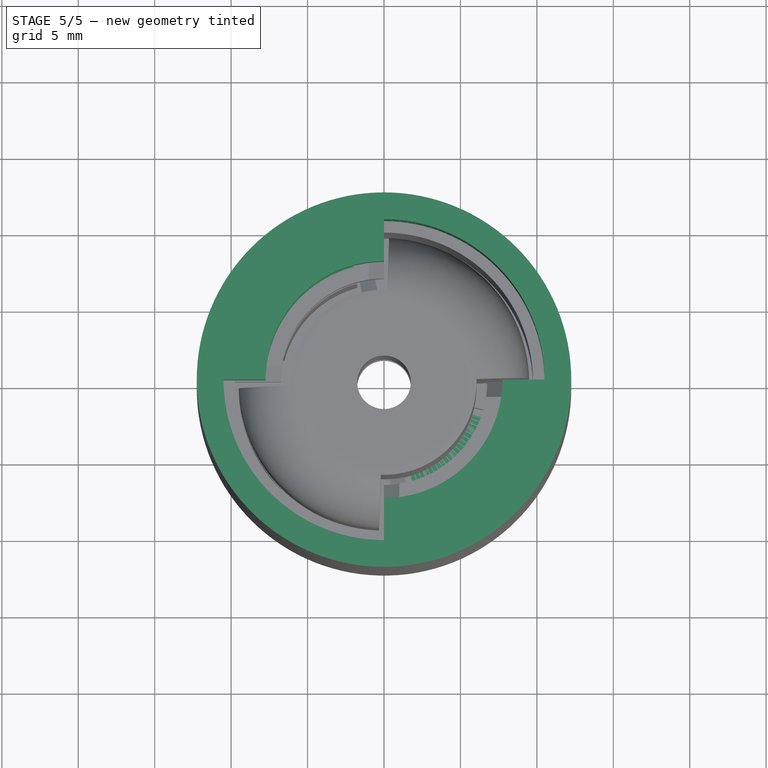
[diagram: stage 5 of 5 — top view after this stage's code; geometry added in this stage tinted green]
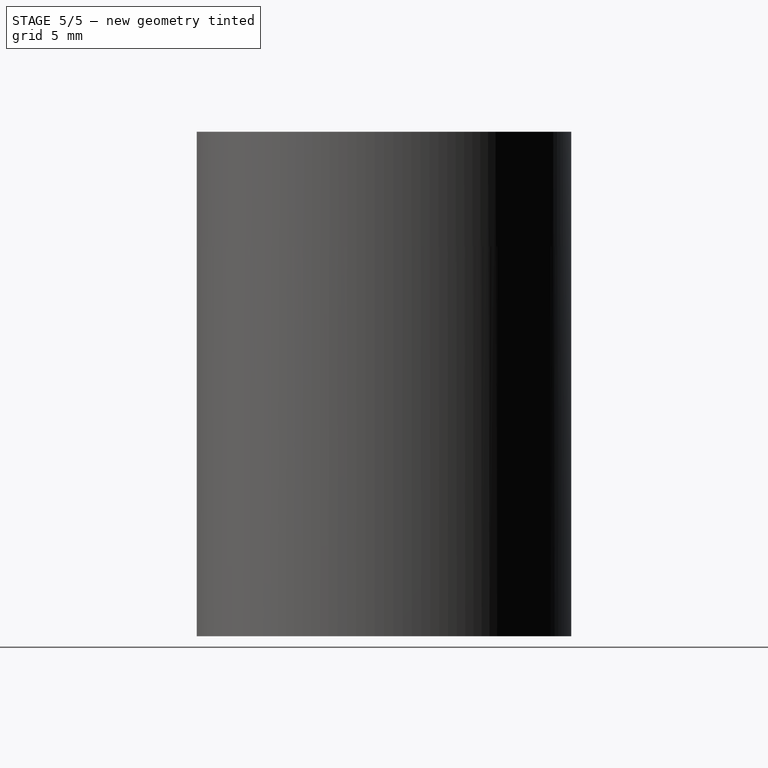
[diagram: stage 5 of 5 — right view after this stage's code; geometry added in this stage tinted green]
FEATURE [Sketcher::SketchObject] Sketch
  FullyConstrained = true
  MapMode = 5
  Support = -> [XY_Plane]
  sketch-geometry (2):
    g0: Circle CenterX=0 CenterY=0 CenterZ=0 NormalX=0 NormalY=0 NormalZ=1 AngleXU=0 Radius=12.25
    g1: Circle CenterX=0 CenterY=0 CenterZ=0 NormalX=0 NormalY=0 NormalZ=1 AngleXU=0 Radius=2
  constraints (4):
    c: Coincident(g0,g-1)
    c: Diameter(g0) = 24.5
    c: Coincident(g1,g0)
    c: Diameter(g1) = 4
FEATURE [PartDesign::Pad] Pad
  Direction = (0,0,1)
  Length = 3
  Length2 = 100
  Profile = -> Sketch
  Refine = true
  Reversed = true
  Type = 0
FEATURE [Sketcher::SketchObject] Sketch001
  FullyConstrained = true
  MapMode = 5
  Support = -> [XY_Plane]
  sketch-geometry (2):
    g0: Circle CenterX=0 CenterY=0 CenterZ=0 NormalX=0 NormalY=0 NormalZ=1 AngleXU=0 Radius=12.25
    g1: Circle CenterX=0 CenterY=0 CenterZ=0 NormalX=0 NormalY=0 NormalZ=1 AngleXU=0 Radius=10.5
  constraints (4):
    c: Coincident(g0,g-1)
    c: Coincident(g1,g0)
    c: Diameter(g0) = 24.5
    c: Diameter(g1) = 21
FEATURE [PartDesign::Pad] Pad001
  BaseFeature = -> Pad
  Direction = (0,0,1)
  Length = 30
  Length2 = 100
  Profile = -> Sketch001
  Refine = true
  Type = 0
FEATURE [Sketcher::SketchObject] Sketch002
  FullyConstrained = true
  MapMode = 5
  Placement = pos=(0,0,30) rot=(0,0,1;0rad)
  sketch-geometry (4):
    g0: ArcOfCircle CenterX=0 CenterY=0 CenterZ=0 NormalX=0 NormalY=0 NormalZ=1 AngleXU=0 Radius=7.75 StartAngle=1.5708 EndAngle=3.14159
    g1: ArcOfCircle CenterX=0 CenterY=0 CenterZ=0 NormalX=0 NormalY=0 NormalZ=1 AngleXU=0 Radius=12.25 StartAngle=1.5708 EndAngle=3.14159
    g2: LineSegment StartX=-12.25 StartY=1.5e-15 StartZ=0 EndX=-7.75 EndY=1.5e-15 EndZ=0
    g3: LineSegment StartX=-1.234e-13 StartY=7.75 StartZ=0 EndX=-1.234e-13 EndY=12.25 EndZ=0
  constraints (12):
    c: PointOnObject(g0,g-1)
    c: PointOnObject(g0,g-2)
    c: Coincident(g1,g0)
    c: Coincident(g2,g1)
    c: Coincident(g2,g0)
    c: Coincident(g3,g0)
    c: Coincident(g3,g1)
    c: Vertical(g3)
    c: DistanceY(g3,g3) = 4.5
    c: Horizontal(g2)
    c: Diameter(g1) = 24.5
    c: Coincident(g0,g-1)
FEATURE [PartDesign::Pad] Pad002
  BaseFeature = -> Pad001
  Direction = (0,0,1)
  Length = 3
  Length2 = 100
  Profile = -> Sketch002
  Refine = true
  Reversed = true
  Type = 0
FEATURE [PartDesign::PolarPattern] PolarPattern
  Angle = 360
  Axis = -> Sketch002 [N_Axis]
  BaseFeature = -> Pad002
  Occurrences = 2
  Originals = -> [Pad002]
  Overlap = 0
  Refine = true
FEATURE [PartDesign::Plane] DatumPlane
  AttachmentOffset = pos=(0,0,-7) rot=(0,0,1;0rad)
  Length = 60
  MapMode = 5
  Placement = pos=(0,0,23) rot=(0,0,1;0rad)
  ResizeMode = 0
  Support = -> [PolarPattern]
  Width = 60
FEATURE [Sketcher::SketchObject] Sketch003
  FullyConstrained = true
  MapMode = 5
  Placement = pos=(0,0,23) rot=(0,0,1;0rad)
  Support = -> [DatumPlane]
  sketch-geometry (6):
    g0: ArcOfCircle CenterX=0 CenterY=0 CenterZ=0 NormalX=0 NormalY=0 NormalZ=1 AngleXU=0 Radius=12.25 StartAngle=1.8326 EndAngle=2.87979
    g1: ArcOfCircle CenterX=0 CenterY=0 CenterZ=0 NormalX=0 NormalY=0 NormalZ=1 AngleXU=0 Radius=7.75 StartAngle=1.8326 EndAngle=2.87979
    g2: LineSegment StartX=-3.17053 StartY=11.8326 StartZ=0 EndX=-2.00585 EndY=7.48593 EndZ=0
    g3: LineSegment StartX=-7.48593 StartY=2.00585 StartZ=0 EndX=-11.8326 EndY=3.17053 EndZ=0
    g4: LineSegment StartX=0 StartY=0 StartZ=0 EndX=-3.17053 EndY=11.8326 EndZ=0
    g5: LineSegment StartX=0 StartY=0 StartZ=0 EndX=-11.8326 EndY=3.17053 EndZ=0
  constraints (16):
    c: Coincident(g0,g-1)
    c: Coincident(g1,g0)
    c: Coincident(g2,g0)
    c: Coincident(g2,g1)
    c: Coincident(g3,g0)
    c: Diameter(g0) = 24.5
    c: Distance(g2) = 4.5
    c: Coincident(g1,g3)
    c: Angle(g2,g3) = 1.0472
    c: Angle(g-2,g2) = 0.261799
    c: Coincident(g4,g0)
    c: Coincident(g4,g0)
    c: Coincident(g5,g0)
    c: Coincident(g5,g0)
    c: Parallel(g4,g2)
    c: Parallel(g3,g5)
FEATURE [PartDesign::Pad] Pad003
  BaseFeature = -> PolarPattern
  Direction = (0,0,1)
  Length = 10
  Length2 = 100
  Profile = -> Sketch003
  Refine = true
  Reversed = true
  Type = 2
FEATURE [PartDesign::Chamfer] Chamfer
  Angle = 45
  Base = -> Pad003 [Edge45]
  BaseFeature = -> Pad003
  ChamferType = 0
  FlipDirection = false
  Refine = true
  Size = 2
  Size2 = 1
  SupportTransform = false
FEATURE [PartDesign::Chamfer] Chamfer002
  Angle = 45
  Base = -> PolarPattern002 [Face19,Face20,Edge35]
  BaseFeature = -> PolarPattern002
  ChamferType = 0
  FlipDirection = false
  Refine = true
  Size = 0.2
  Size2 = 1
  SupportTransform = false
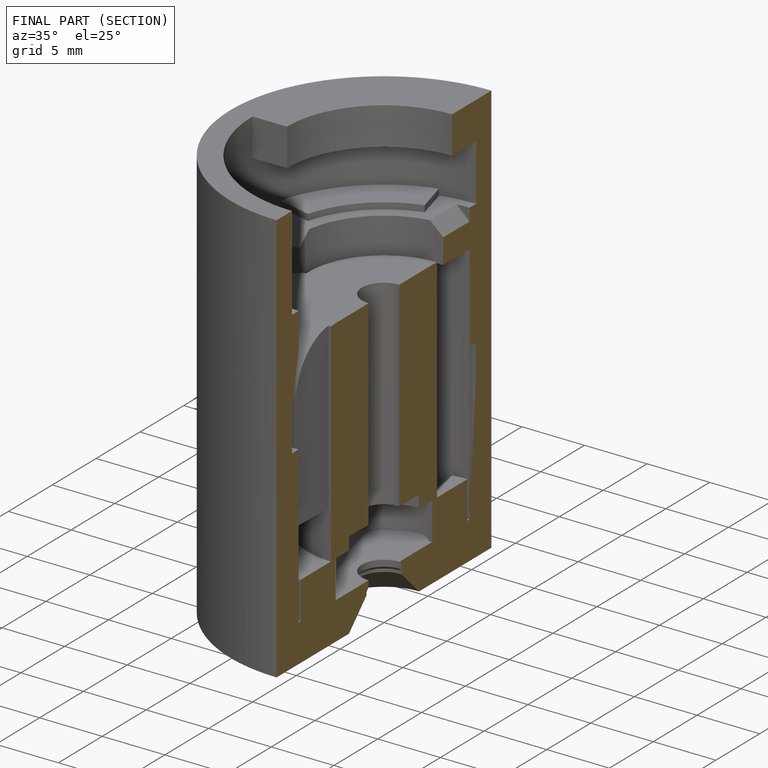
[diagram: finished part — half-section view (interior)]
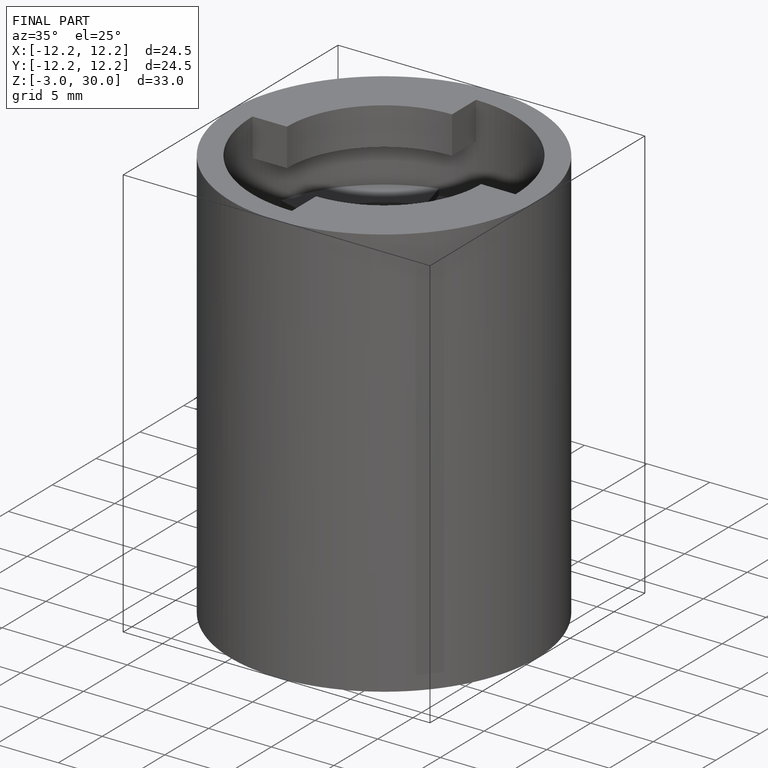
[diagram: finished part — iso view with bounding-box wireframe]
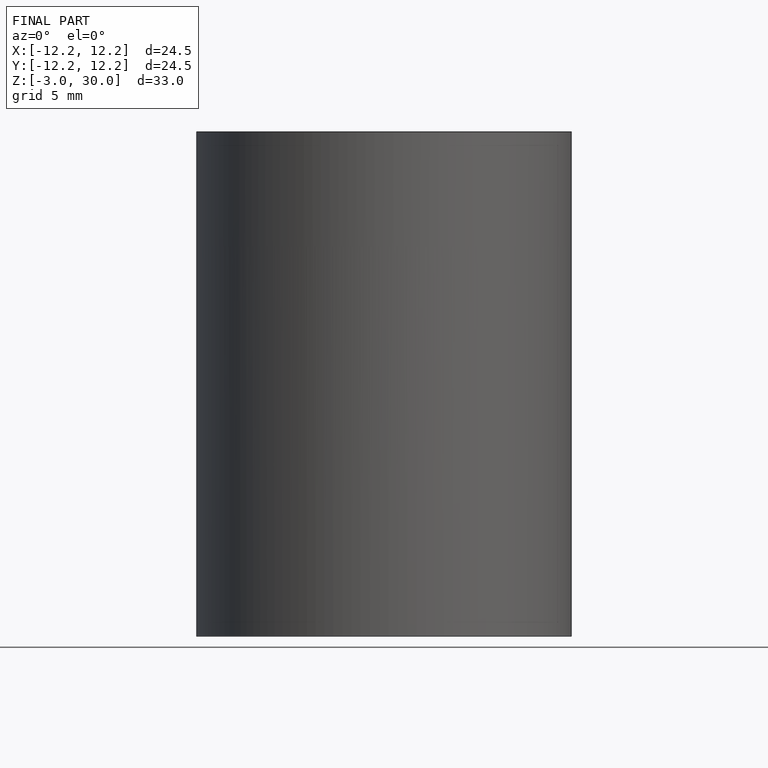
[diagram: finished part — front view with bounding-box wireframe]
